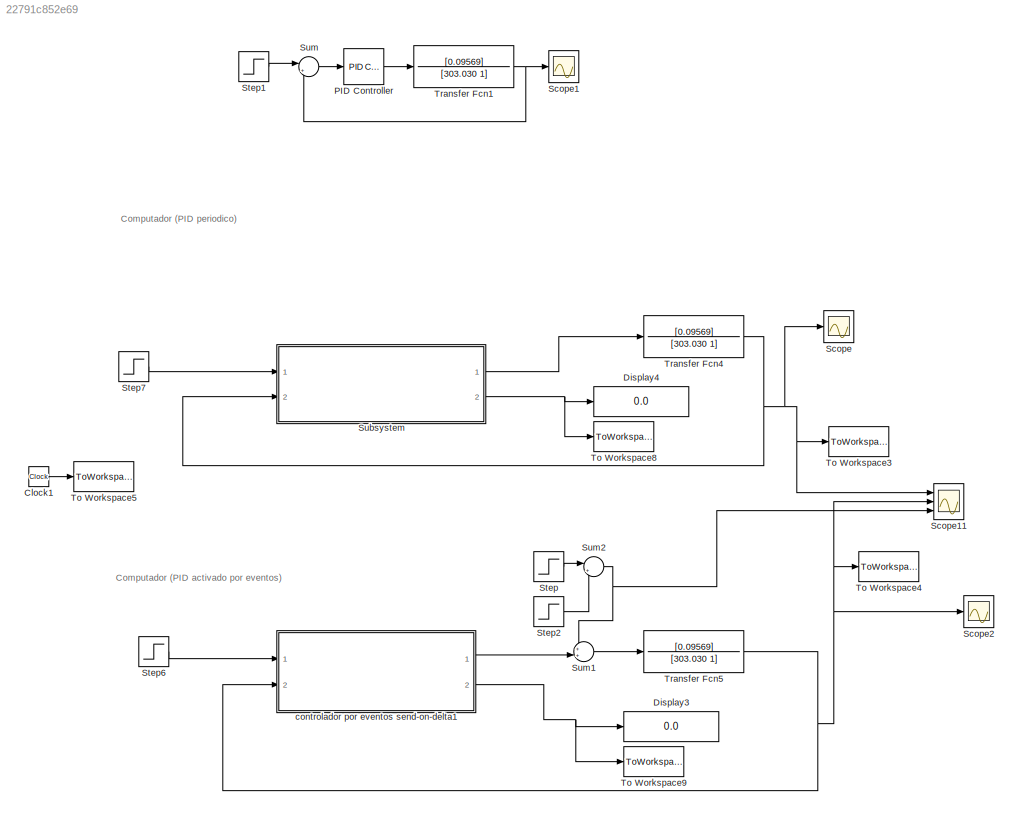
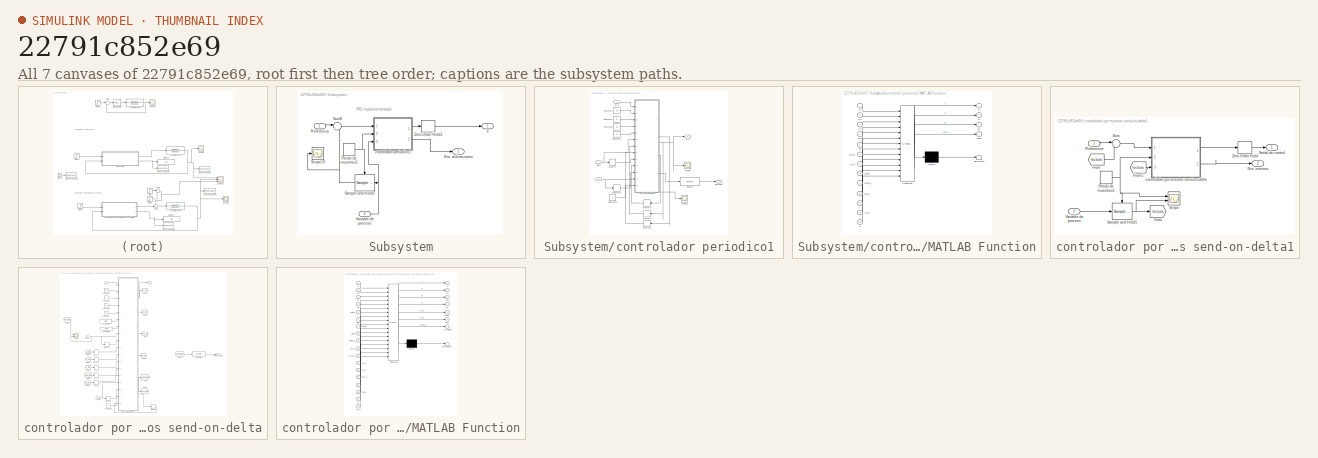
[diagram: thumbnail index - all 7 canvases of the model, root first then tree order]
MODEL slx_22791c852e69
KIND model
CONFIG AbsTol = auto
CONFIG EnableMultiTasking = off
CONFIG FixedStep = 1e-2
CONFIG MaxStep = auto
CONFIG MinStep = auto
CONFIG RelTol = auto
CONFIG SampleTimeConstraint = Unconstrained
CONFIG Solver = FixedStepAuto
CONFIG SolverName = FixedStepAuto
CONFIG StartTime = 0.0
CONFIG StopTime = 8000
BLOCK [Clock] Clock1
BLOCK [Display] Display3
  Decimation = 1
  Ports = [1]
BLOCK [Display] Display4
  Decimation = 1
  Ports = [1]
BLOCK [Reference] PID Controller  REF=simulink/Continuous/PID Controller
  Ports = [1, 1]
  SourceBlock = simulink/Continuous/PID Controller
  SourceProductBaseCode = SL
  SourceProductName = Simulink
  SourceType = PID 1dof
BLOCK [Scope] Scope
  Floating = off
  NumInputPorts = 1
  Ports = [1]
  ScopeSpecificationString = Simulink.scopes.TimeScopeBlockCfg('CurrentConfiguration', extmgr.ConfigurationSet(extmgr.Configuration('Core','General UI',true),extmgr.Configuration('Core','Source UI',true),extmgr.Configuration('Sources','WiredSimulink',true,'DataLoggingVariableName','ScopeData2'),extmgr.Configuration('Visuals','Time Domain',true,'SerializedDisplays',{struct('MinYLimReal','-0.21494','MaxYLimReal','1.93444','YLab...<+1416ch>
BLOCK [Scope] Scope1
  Floating = off
  NumInputPorts = 1
  Ports = [1]
  ScopeSpecificationString = Simulink.scopes.TimeScopeBlockCfg('CurrentConfiguration', extmgr.ConfigurationSet(extmgr.Configuration('Core','General UI',true),extmgr.Configuration('Core','Source UI',true),extmgr.Configuration('Sources','WiredSimulink',true,'DataLoggingVariableName','ScopeData4'),extmgr.Configuration('Visuals','Time Domain',true,'SerializedDisplays',{struct('MinYLimReal','-0.21494','MaxYLimReal','1.93444','YLab...<+1416ch>
BLOCK [Scope] Scope11
  Floating = off
  NumInputPorts = 3
  Ports = [3]
  ScopeSpecificationString = Simulink.scopes.TimeScopeBlockCfg('CurrentConfiguration', extmgr.ConfigurationSet(extmgr.Configuration('Core','General UI',true,'FigureColor',[1 1 1]),extmgr.Configuration('Core','Source UI',true),extmgr.Configuration('Sources','WiredSimulink',true,'DataLoggingVariableName','ScopeData1'),extmgr.Configuration('Visuals','Time Domain',true,'SerializedDisplays',{struct('MinYLimReal','-1.35875','MaxYLi...<+1872ch>
BLOCK [Scope] Scope2
  Floating = off
  NumInputPorts = 1
  Ports = [1]
  ScopeSpecificationString = Simulink.scopes.TimeScopeBlockCfg('CurrentConfiguration', extmgr.ConfigurationSet(extmgr.Configuration('Core','General UI',true),extmgr.Configuration('Core','Source UI',true),extmgr.Configuration('Sources','WiredSimulink',true,'DataLoggingVariableName','ScopeData6'),extmgr.Configuration('Visuals','Time Domain',true,'SerializedDisplays',{struct('MinYLimReal','-0.13397','MaxYLimReal','1.20577','YLab...<+1372ch>
BLOCK [Step] Step
  After = +10
  SampleTime = 0
  Time = 3000
BLOCK [Step] Step1
  SampleTime = 0
  Time = 0
BLOCK [Step] Step2
  After = -10
  SampleTime = 0
  Time = 3050
BLOCK [Step] Step6
  SampleTime = 0
  Time = 0
BLOCK [Step] Step7
  SampleTime = 0
  Time = 0
BLOCK [SubSystem] Subsystem
  Ports = [2, 2]
  RequestExecContextInheritance = off
BLOCK [Outport] Subsystem/Nro. activaciones
  IconDisplay = Port number
  Port = 2
BLOCK [DiscretePulseGenerator] Subsystem/Perido de muestreo2
  Period = Ts
  Ports = [0, 1]
  PulseType = Time based
  PulseWidth = 50
BLOCK [Inport] Subsystem/Referencia
  IconDisplay = Port number
BLOCK [Reference] Subsystem/Sample and Hold2  REF=dspsigops/Sample
and Hold
  Ports = [1, 1, 0, 1]
  SourceBlock = dspsigops/Sample\nand Hold
  SourceProductBaseCode = DS
  SourceProductName = DSP System Toolbox
  SourceType = Sample and Hold
BLOCK [Scope] Subsystem/Scope13
  Floating = off
  NumInputPorts = 1
  Ports = [1]
  ScopeSpecificationString = Simulink.scopes.TimeScopeBlockCfg('CurrentConfiguration', extmgr.ConfigurationSet(extmgr.Configuration('Core','General UI',true),extmgr.Configuration('Core','Source UI',true),extmgr.Configuration('Sources','WiredSimulink',true,'DataLoggingVariableName','ScopeData9'),extmgr.Configuration('Visuals','Time Domain',true,'SerializedDisplays',{struct('MinYLimReal','0.55618','MaxYLimReal','1.07343','YLabe...<+1391ch>
BLOCK [Sum] Subsystem/Sum8
  IconShape = round
  InputSameDT = off
  Inputs = |+-
  OutDataTypeStr = Inherit: Inherit via internal rule
  Ports = [2, 1]
  SaturateOnIntegerOverflow = off
BLOCK [Inport] Subsystem/Variable de proceso
  IconDisplay = Port number
  Port = 2
BLOCK [ZeroOrderHold] Subsystem/Zero-Order Hold3
  SampleTime = -1
BLOCK [SubSystem] Subsystem/controlador periodico1
  Ports = [3, 2]
  RequestExecContextInheritance = off
BLOCK [Inport] Subsystem/controlador periodico1/Clock
  IconDisplay = Port number
  Port = 2
BLOCK [Constant] Subsystem/controlador periodico1/Constant1
  Value = Kp
BLOCK [Constant] Subsystem/controlador periodico1/Constant2
  Value = Ki
BLOCK [Constant] Subsystem/controlador periodico1/Constant3
  Value = Kd
BLOCK [Constant] Subsystem/controlador periodico1/Constant4
  Value = Ts
BLOCK [Constant] Subsystem/controlador periodico1/Constant5
  Value = N
BLOCK [Outport] Subsystem/controlador periodico1/Contador
  IconDisplay = Port number
  Port = 2
BLOCK [Reference] Subsystem/controlador periodico1/Counter  REF=dspswit3/Counter
  Ports = [1, 1]
  SourceBlock = dspswit3/Counter
  SourceProductBaseCode = DS
  SourceProductName = DSP System Toolbox
  SourceType = Counter
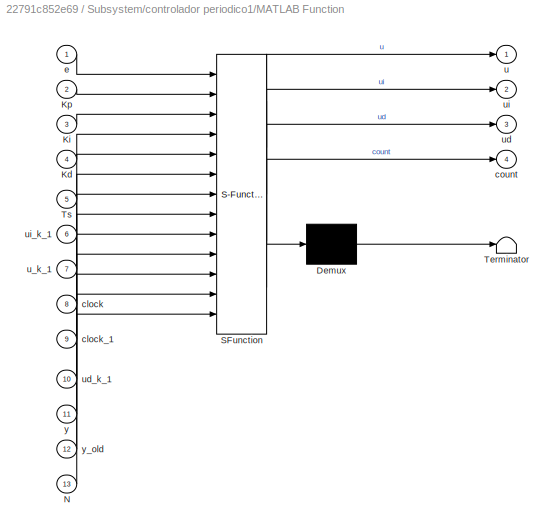
BLOCK [SubSystem] Subsystem/controlador periodico1/MATLAB Function
  ErrorFcn = Stateflow.Translate.translate
  PermitHierarchicalResolution = ExplicitOnly
  Ports = [13, 4]
  RequestExecContextInheritance = off
  SFBlockType = MATLAB Function
  TreatAsAtomicUnit = on
BLOCK [Demux] Subsystem/controlador periodico1/MATLAB Function/ Demux 
  Outputs = 1
  Ports = [1, 1]
BLOCK [S-Function] Subsystem/controlador periodico1/MATLAB Function/ SFunction 
  EnableBusSupport = on
  FunctionName = sf_sfun
  PortCounts = [13 5]
  Ports = [13, 5]
  SFcnIsStateOwnerBlock = off
  SFunctionDeploymentMode = off
  Tag = Stateflow S-Function PID_generico 3
BLOCK [Terminator] Subsystem/controlador periodico1/MATLAB Function/ Terminator 
BLOCK [Inport] Subsystem/controlador periodico1/MATLAB Function/Kd
  IconDisplay = Port number
  Port = 4
BLOCK [Inport] Subsystem/controlador periodico1/MATLAB Function/Ki
  IconDisplay = Port number
  Port = 3
BLOCK [Inport] Subsystem/controlador periodico1/MATLAB Function/Kp
  IconDisplay = Port number
  Port = 2
BLOCK [Inport] Subsystem/controlador periodico1/MATLAB Function/N
  IconDisplay = Port number
  Port = 13
BLOCK [Inport] Subsystem/controlador periodico1/MATLAB Function/Ts
  IconDisplay = Port number
  Port = 5
BLOCK [Inport] Subsystem/controlador periodico1/MATLAB Function/clock
  IconDisplay = Port number
  Port = 8
BLOCK [Inport] Subsystem/controlador periodico1/MATLAB Function/clock_1
  IconDisplay = Port number
  Port = 9
BLOCK [Outport] Subsystem/controlador periodico1/MATLAB Function/count
  IconDisplay = Port number
  Port = 4
BLOCK [Inport] Subsystem/controlador periodico1/MATLAB Function/e
  IconDisplay = Port number
BLOCK [Outport] Subsystem/controlador periodico1/MATLAB Function/u
  IconDisplay = Port number
BLOCK [Inport] Subsystem/controlador periodico1/MATLAB Function/u_k_1
  IconDisplay = Port number
  Port = 7
BLOCK [Outport] Subsystem/controlador periodico1/MATLAB Function/ud
  IconDisplay = Port number
  Port = 3
BLOCK [Inport] Subsystem/controlador periodico1/MATLAB Function/ud_k_1
  IconDisplay = Port number
  Port = 10
BLOCK [Outport] Subsystem/controlador periodico1/MATLAB Function/ui
  IconDisplay = Port number
  Port = 2
BLOCK [Inport] Subsystem/controlador periodico1/MATLAB Function/ui_k_1
  IconDisplay = Port number
  Port = 6
BLOCK [Inport] Subsystem/controlador periodico1/MATLAB Function/y
  IconDisplay = Port number
  Port = 11
BLOCK [Inport] Subsystem/controlador periodico1/MATLAB Function/y_old
  IconDisplay = Port number
  Port = 12
BLOCK [Memory] Subsystem/controlador periodico1/Memory
BLOCK [Memory] Subsystem/controlador periodico1/Memory1
BLOCK [Memory] Subsystem/controlador periodico1/Memory2
BLOCK [Memory] Subsystem/controlador periodico1/Memory3
BLOCK [Memory] Subsystem/controlador periodico1/Memory4
BLOCK [Scope] Subsystem/controlador periodico1/Scope
  Floating = off
  NumInputPorts = 1
  Ports = [1]
  ScopeSpecificationString = Simulink.scopes.TimeScopeBlockCfg('CurrentConfiguration', extmgr.ConfigurationSet(extmgr.Configuration('Core','General UI',true),extmgr.Configuration('Core','Source UI',true),extmgr.Configuration('Sources','WiredSimulink',true,'DataLoggingVariableName','ScopeData1'),extmgr.Configuration('Visuals','Time Domain',true,'SerializedDisplays',{struct('MinYLimReal','1.74532','MaxYLimReal','1.7638','YLabel...<+1389ch>
BLOCK [Scope] Subsystem/controlador periodico1/Scope1
  Floating = off
  NumInputPorts = 1
  Ports = [1]
  ScopeSpecificationString = Simulink.scopes.TimeScopeBlockCfg('CurrentConfiguration', extmgr.ConfigurationSet(extmgr.Configuration('Core','General UI',true),extmgr.Configuration('Core','Source UI',true),extmgr.Configuration('Sources','WiredSimulink',true,'DataLoggingVariableName','ScopeData3'),extmgr.Configuration('Visuals','Time Domain',true,'SerializedDisplays',{struct('MinYLimReal','-1.00000','MaxYLimReal','1.00000','YLab...<+1377ch>
BLOCK [Inport] Subsystem/controlador periodico1/error
  IconDisplay = Port number
BLOCK [Outport] Subsystem/controlador periodico1/u(k)
  IconDisplay = Port number
BLOCK [Inport] Subsystem/controlador periodico1/y
  IconDisplay = Port number
  Port = 3
BLOCK [Outport] Subsystem/e
  IconDisplay = Port number
BLOCK [Sum] Sum
  IconShape = round
  InputSameDT = off
  Inputs = |+-
  OutDataTypeStr = Inherit: Inherit via internal rule
  Ports = [2, 1]
  SaturateOnIntegerOverflow = off
BLOCK [Sum] Sum1
  IconShape = round
  InputSameDT = off
  Inputs = ++|
  OutDataTypeStr = Inherit: Inherit via internal rule
  Ports = [2, 1]
  SaturateOnIntegerOverflow = off
BLOCK [Sum] Sum2
  IconShape = round
  InputSameDT = off
  Inputs = |++
  OutDataTypeStr = Inherit: Inherit via internal rule
  Ports = [2, 1]
  SaturateOnIntegerOverflow = off
BLOCK [ToWorkspace] To Workspace3
  FixptAsFi = on
  MaxDataPoints = inf
  Ports = [1]
  SampleTime = -1
  Save2DSignal = 3-D array (concatenate along third dimension)
  SaveFormat = Structure With Time
  VariableName = y_ts
BLOCK [ToWorkspace] To Workspace4
  FixptAsFi = on
  MaxDataPoints = inf
  Ports = [1]
  SampleTime = -1
  Save2DSignal = 3-D array (concatenate along third dimension)
  SaveFormat = Structure With Time
  VariableName = y_eventos_ts
BLOCK [ToWorkspace] To Workspace5
  FixptAsFi = on
  MaxDataPoints = inf
  Ports = [1]
  SampleTime = -1
  Save2DSignal = 2-D array (concatenate along first dimension)
  VariableName = t_simu1
BLOCK [ToWorkspace] To Workspace8
  FixptAsFi = on
  MaxDataPoints = inf
  Ports = [1]
  SampleTime = -1
  Save2DSignal = 2-D array (concatenate along first dimension)
  VariableName = N_periodico_
BLOCK [ToWorkspace] To Workspace9
  FixptAsFi = on
  MaxDataPoints = inf
  Ports = [1]
  SampleTime = -1
  Save2DSignal = 2-D array (concatenate along first dimension)
  VariableName = N_eventos_
BLOCK [TransferFcn] Transfer Fcn1
  Denominator = [303.030 1]
  Numerator = [0.09569]
BLOCK [TransferFcn] Transfer Fcn4
  Denominator = [303.030 1]
  Numerator = [0.09569]
BLOCK [TransferFcn] Transfer Fcn5
  Denominator = [303.030 1]
  Numerator = [0.09569]
BLOCK [SubSystem] controlador por eventos send-on-delta1
  Ports = [2, 2]
  RequestExecContextInheritance = off
BLOCK [From] controlador por eventos send-on-delta1/From
  GotoTag = lectura
BLOCK [From] controlador por eventos send-on-delta1/From1
  GotoTag = lectura
BLOCK [Goto] controlador por eventos send-on-delta1/Goto
  GotoTag = lectura
BLOCK [Outport] controlador por eventos send-on-delta1/Nro. eventos
  IconDisplay = Port number
  Port = 2
BLOCK [DiscretePulseGenerator] controlador por eventos send-on-delta1/Perido de muestreo1
  Period = Ts
  Ports = [0, 1]
  PulseType = Time based
  PulseWidth = 50
BLOCK [Inport] controlador por eventos send-on-delta1/Referencia
  IconDisplay = Port number
BLOCK [Reference] controlador por eventos send-on-delta1/Sample and Hold1  REF=dspsigops/Sample
and Hold
  Ports = [1, 1, 0, 1]
  SourceBlock = dspsigops/Sample\nand Hold
  SourceProductBaseCode = DS
  SourceProductName = DSP System Toolbox
  SourceType = Sample and Hold
BLOCK [Scope] controlador por eventos send-on-delta1/Scope
  Floating = off
  NumInputPorts = 2
  Ports = [2]
  ScopeSpecificationString = Simulink.scopes.TimeScopeBlockCfg('CurrentConfiguration', extmgr.ConfigurationSet(extmgr.Configuration('Core','General UI',true),extmgr.Configuration('Core','Source UI',true),extmgr.Configuration('Sources','WiredSimulink',true,'DataLoggingVariableName','ScopeData7'),extmgr.Configuration('Visuals','Time Domain',true,'SerializedDisplays',{struct('MinYLimReal','-0.08236','MaxYLimReal','1.02074','YLab...<+1417ch>
BLOCK [Outport] controlador por eventos send-on-delta1/Señal de control
  IconDisplay = Port number
BLOCK [Sum] controlador por eventos send-on-delta1/Sum
  IconShape = round
  InputSameDT = off
  Inputs = |+-
  OutDataTypeStr = Inherit: Inherit via internal rule
  Ports = [2, 1]
  SaturateOnIntegerOverflow = off
BLOCK [Inport] controlador por eventos send-on-delta1/Variable de proceso
  IconDisplay = Port number
  Port = 2
BLOCK [ZeroOrderHold] controlador por eventos send-on-delta1/Zero-Order Hold
  SampleTime = -1
BLOCK [SubSystem] controlador por eventos send-on-delta1/controlador por eventos send-on-delta
  Ports = [3, 2]
  RequestExecContextInheritance = off
BLOCK [Constant] controlador por eventos send-on-delta1/controlador por eventos send-on-delta/Constant
  Value = Ts
BLOCK [Constant] controlador por eventos send-on-delta1/controlador por eventos send-on-delta/Constant1
  Value = Kp
BLOCK [Constant] controlador por eventos send-on-delta1/controlador por eventos send-on-delta/Constant2
  Value = Ki
BLOCK [Constant] controlador por eventos send-on-delta1/controlador por eventos send-on-delta/Constant3
  Value = Kd
BLOCK [Constant] controlador por eventos send-on-delta1/controlador por eventos send-on-delta/Constant4
  Value = elim
BLOCK [Constant] controlador por eventos send-on-delta1/controlador por eventos send-on-delta/Constant5
  Value = hmax
BLOCK [Constant] controlador por eventos send-on-delta1/controlador por eventos send-on-delta/Constant6
  Value = N
BLOCK [Reference] controlador por eventos send-on-delta1/controlador por eventos send-on-delta/Counter  REF=dspswit3/Counter
  Ports = [1, 1]
  SourceBlock = dspswit3/Counter
  SourceProductBaseCode = DS
  SourceProductName = DSP System Toolbox
  SourceType = Counter
BLOCK [From] controlador por eventos send-on-delta1/controlador por eventos send-on-delta/From
  GotoTag = Count_tag
BLOCK [From] controlador por eventos send-on-delta1/controlador por eventos send-on-delta/From1
  GotoTag = es_tag
BLOCK [From] controlador por eventos send-on-delta1/controlador por eventos send-on-delta/From2
  GotoTag = u_tag
BLOCK [From] controlador por eventos send-on-delta1/controlador por eventos send-on-delta/From3
  GotoTag = hact_tag
BLOCK [From] controlador por eventos send-on-delta1/controlador por eventos send-on-delta/From4
  GotoTag = ui_tag
BLOCK [From] controlador por eventos send-on-delta1/controlador por eventos send-on-delta/From5
  GotoTag = hact_tag
BLOCK [From] controlador por eventos send-on-delta1/controlador por eventos send-on-delta/From6
  GotoTag = ud_tag
BLOCK [Goto] controlador por eventos send-on-delta1/controlador por eventos send-on-delta/Goto
  GotoTag = Count_tag
BLOCK [Goto] controlador por eventos send-on-delta1/controlador por eventos send-on-delta/Goto1
  GotoTag = es_tag
BLOCK [Goto] controlador por eventos send-on-delta1/controlador por eventos send-on-delta/Goto2
  GotoTag = u_tag
BLOCK [Goto] controlador por eventos send-on-delta1/controlador por eventos send-on-delta/Goto3
  GotoTag = ui_tag
BLOCK [Goto] controlador por eventos send-on-delta1/controlador por eventos send-on-delta/Goto4
  GotoTag = hact_tag
BLOCK [Goto] controlador por eventos send-on-delta1/controlador por eventos send-on-delta/Goto5
  GotoTag = ud_tag
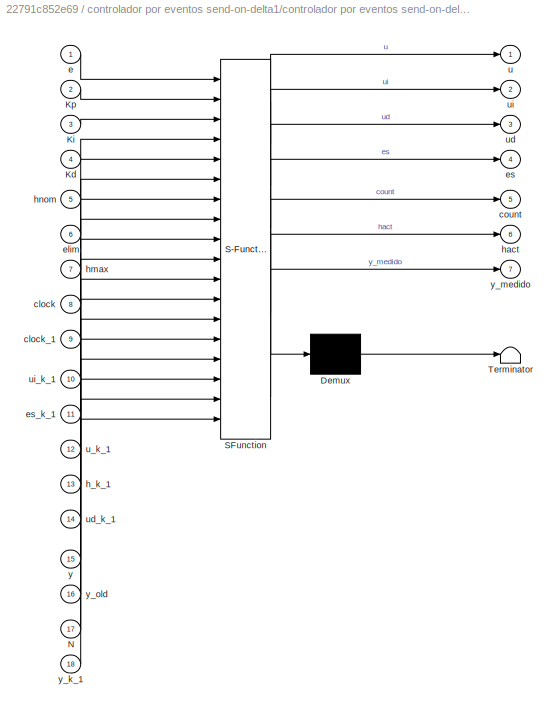
BLOCK [SubSystem] controlador por eventos send-on-delta1/controlador por eventos send-on-delta/MATLAB Function
  ErrorFcn = Stateflow.Translate.translate
  PermitHierarchicalResolution = ExplicitOnly
  Ports = [18, 7]
  RequestExecContextInheritance = off
  SFBlockType = MATLAB Function
  TreatAsAtomicUnit = on
BLOCK [Demux] controlador por eventos send-on-delta1/controlador por eventos send-on-delta/MATLAB Function/ Demux 
  Outputs = 1
  Ports = [1, 1]
BLOCK [S-Function] controlador por eventos send-on-delta1/controlador por eventos send-on-delta/MATLAB Function/ SFunction 
  EnableBusSupport = on
  FunctionName = sf_sfun
  PortCounts = [18 8]
  Ports = [18, 8]
  SFcnIsStateOwnerBlock = off
  SFunctionDeploymentMode = off
  Tag = Stateflow S-Function PID_generico 5
BLOCK [Terminator] controlador por eventos send-on-delta1/controlador por eventos send-on-delta/MATLAB Function/ Terminator 
BLOCK [Inport] controlador por eventos send-on-delta1/controlador por eventos send-on-delta/MATLAB Function/Kd
  IconDisplay = Port number
  Port = 4
BLOCK [Inport] controlador por eventos send-on-delta1/controlador por eventos send-on-delta/MATLAB Function/Ki
  IconDisplay = Port number
  Port = 3
BLOCK [Inport] controlador por eventos send-on-delta1/controlador por eventos send-on-delta/MATLAB Function/Kp
  IconDisplay = Port number
  Port = 2
BLOCK [Inport] controlador por eventos send-on-delta1/controlador por eventos send-on-delta/MATLAB Function/N
  IconDisplay = Port number
  Port = 17
BLOCK [Inport] controlador por eventos send-on-delta1/controlador por eventos send-on-delta/MATLAB Function/clock
  IconDisplay = Port number
  Port = 8
BLOCK [Inport] controlador por eventos send-on-delta1/controlador por eventos send-on-delta/MATLAB Function/clock_1
  IconDisplay = Port number
  Port = 9
BLOCK [Outport] controlador por eventos send-on-delta1/controlador por eventos send-on-delta/MATLAB Function/count
  IconDisplay = Port number
  Port = 5
BLOCK [Inport] controlador por eventos send-on-delta1/controlador por eventos send-on-delta/MATLAB Function/e
  IconDisplay = Port number
BLOCK [Inport] controlador por eventos send-on-delta1/controlador por eventos send-on-delta/MATLAB Function/elim
  IconDisplay = Port number
  Port = 6
BLOCK [Outport] controlador por eventos send-on-delta1/controlador por eventos send-on-delta/MATLAB Function/es
  IconDisplay = Port number
  Port = 4
BLOCK [Inport] controlador por eventos send-on-delta1/controlador por eventos send-on-delta/MATLAB Function/es_k_1
  IconDisplay = Port number
  Port = 11
BLOCK [Inport] controlador por eventos send-on-delta1/controlador por eventos send-on-delta/MATLAB Function/h_k_1
  IconDisplay = Port number
  Port = 13
BLOCK [Outport] controlador por eventos send-on-delta1/controlador por eventos send-on-delta/MATLAB Function/hact
  IconDisplay = Port number
  Port = 6
BLOCK [Inport] controlador por eventos send-on-delta1/controlador por eventos send-on-delta/MATLAB Function/hmax
  IconDisplay = Port number
  Port = 7
BLOCK [Inport] controlador por eventos send-on-delta1/controlador por eventos send-on-delta/MATLAB Function/hnom
  IconDisplay = Port number
  Port = 5
BLOCK [Outport] controlador por eventos send-on-delta1/controlador por eventos send-on-delta/MATLAB Function/u
  IconDisplay = Port number
BLOCK [Inport] controlador por eventos send-on-delta1/controlador por eventos send-on-delta/MATLAB Function/u_k_1
  IconDisplay = Port number
  Port = 12
BLOCK [Outport] controlador por eventos send-on-delta1/controlador por eventos send-on-delta/MATLAB Function/ud
  IconDisplay = Port number
  Port = 3
BLOCK [Inport] controlador por eventos send-on-delta1/controlador por eventos send-on-delta/MATLAB Function/ud_k_1
  IconDisplay = Port number
  Port = 14
BLOCK [Outport] controlador por eventos send-on-delta1/controlador por eventos send-on-delta/MATLAB Function/ui
  IconDisplay = Port number
  Port = 2
BLOCK [Inport] controlador por eventos send-on-delta1/controlador por eventos send-on-delta/MATLAB Function/ui_k_1
  IconDisplay = Port number
  Port = 10
BLOCK [Inport] controlador por eventos send-on-delta1/controlador por eventos send-on-delta/MATLAB Function/y
  IconDisplay = Port number
  Port = 15
BLOCK [Inport] controlador por eventos send-on-delta1/controlador por eventos send-on-delta/MATLAB Function/y_k_1
  IconDisplay = Port number
  Port = 18
BLOCK [Outport] controlador por eventos send-on-delta1/controlador por eventos send-on-delta/MATLAB Function/y_medido
  IconDisplay = Port number
  Port = 7
BLOCK [Inport] controlador por eventos send-on-delta1/controlador por eventos send-on-delta/MATLAB Function/y_old
  IconDisplay = Port number
  Port = 16
BLOCK [Memory] controlador por eventos send-on-delta1/controlador por eventos send-on-delta/Memory
BLOCK [Memory] controlador por eventos send-on-delta1/controlador por eventos send-on-delta/Memory4
BLOCK [Memory] controlador por eventos send-on-delta1/controlador por eventos send-on-delta/Memory6
BLOCK [Outport] controlador por eventos send-on-delta1/controlador por eventos send-on-delta/Nro de eventos 
  IconDisplay = Port number
  Port = 2
BLOCK [Scope] controlador por eventos send-on-delta1/controlador por eventos send-on-delta/Scope
  Floating = off
  NumInputPorts = 2
  Ports = [2]
  ScopeSpecificationString = Simulink.scopes.TimeScopeBlockCfg('CurrentConfiguration', extmgr.ConfigurationSet(extmgr.Configuration('Core','General UI',true),extmgr.Configuration('Core','Source UI',true),extmgr.Configuration('Sources','WiredSimulink',true,'DataLoggingVariableName','ScopeData5'),extmgr.Configuration('Visuals','Time Domain',true,'SerializedDisplays',{struct('MinYLimReal','-33.71232','MaxYLimReal','79.84498','YL...<+1423ch>
BLOCK [Inport] controlador por eventos send-on-delta1/controlador por eventos send-on-delta/clock
  IconDisplay = Port number
  Port = 2
BLOCK [Inport] controlador por eventos send-on-delta1/controlador por eventos send-on-delta/e
  IconDisplay = Port number
BLOCK [Memory] controlador por eventos send-on-delta1/controlador por eventos send-on-delta/es_k_1
BLOCK [Memory] controlador por eventos send-on-delta1/controlador por eventos send-on-delta/h_k_1
BLOCK [Outport] controlador por eventos send-on-delta1/controlador por eventos send-on-delta/u
  IconDisplay = Port number
BLOCK [Memory] controlador por eventos send-on-delta1/controlador por eventos send-on-delta/u_k_1
BLOCK [Memory] controlador por eventos send-on-delta1/controlador por eventos send-on-delta/ud_k_1
BLOCK [Memory] controlador por eventos send-on-delta1/controlador por eventos send-on-delta/ui_k_1
BLOCK [Inport] controlador por eventos send-on-delta1/controlador por eventos send-on-delta/y_planta
  IconDisplay = Port number
  Port = 3
ANNOTATION (root): Computador (PID activado por eventos)
ANNOTATION (root): Computador (PID periodico)
ANNOTATION Subsystem: PID implemementado
LINE Clock1:1 -> To Workspace5:1
LINE PID Controller:1 -> Transfer Fcn1:1
LINE Step1:1 -> Sum:1
LINE Step2:1 -> Sum2:2
LINE Step6:1 -> controlador por eventos send-on-delta1:1
LINE Step7:1 -> Subsystem:1
LINE Step:1 -> Sum2:1
NET Subsystem/Perido de muestreo2:1 -> Subsystem/Sample and Hold2:trigger, Subsystem/controlador periodico1:2
LINE Subsystem/Referencia:1 -> Subsystem/Sum8:1
NET Subsystem/Sample and Hold2:1 -> Subsystem/Scope13:1, Subsystem/Sum8:2
LINE Subsystem/Sum8:1 -> Subsystem/controlador periodico1:1
NET Subsystem/Variable de proceso:1 -> Subsystem/Sample and Hold2:1, Subsystem/controlador periodico1:3
LINE Subsystem/Zero-Order Hold3:1 -> Subsystem/e:1
NET Subsystem/controlador periodico1/Clock:1 -> Subsystem/controlador periodico1/MATLAB Function:8, Subsystem/controlador periodico1/Memory:1
LINE Subsystem/controlador periodico1/Constant1:1 -> Subsystem/controlador periodico1/MATLAB Function:2
LINE Subsystem/controlador periodico1/Constant2:1 -> Subsystem/controlador periodico1/MATLAB Function:3
LINE Subsystem/controlador periodico1/Constant3:1 -> Subsystem/controlador periodico1/MATLAB Function:4
LINE Subsystem/controlador periodico1/Constant4:1 -> Subsystem/controlador periodico1/MATLAB Function:5
LINE Subsystem/controlador periodico1/Constant5:1 -> Subsystem/controlador periodico1/MATLAB Function:13
LINE Subsystem/controlador periodico1/Counter:1 -> Subsystem/controlador periodico1/Contador:1
NET Subsystem/controlador periodico1/MATLAB Function:1 -> Subsystem/controlador periodico1/Memory1:1, Subsystem/controlador periodico1/Scope:1, Subsystem/controlador periodico1/u(k):1
LINE Subsystem/controlador periodico1/MATLAB Function:2 -> Subsystem/controlador periodico1/Memory2:1
NET Subsystem/controlador periodico1/MATLAB Function:3 -> Subsystem/controlador periodico1/Memory3:1, Subsystem/controlador periodico1/Scope1:1
LINE Subsystem/controlador periodico1/MATLAB Function:4 -> Subsystem/controlador periodico1/Counter:1
LINE Subsystem/controlador periodico1/Memory1:1 -> Subsystem/controlador periodico1/MATLAB Function:7
LINE Subsystem/controlador periodico1/Memory2:1 -> Subsystem/controlador periodico1/MATLAB Function:6
LINE Subsystem/controlador periodico1/Memory3:1 -> Subsystem/controlador periodico1/MATLAB Function:10
LINE Subsystem/controlador periodico1/Memory4:1 -> Subsystem/controlador periodico1/MATLAB Function:12
LINE Subsystem/controlador periodico1/Memory:1 -> Subsystem/controlador periodico1/MATLAB Function:9
LINE Subsystem/controlador periodico1/error:1 -> Subsystem/controlador periodico1/MATLAB Function:1
NET Subsystem/controlador periodico1/y:1 -> Subsystem/controlador periodico1/MATLAB Function:11, Subsystem/controlador periodico1/Memory4:1
LINE Subsystem/controlador periodico1:1 -> Subsystem/Zero-Order Hold3:1
LINE Subsystem/controlador periodico1:2 -> Subsystem/Nro. activaciones:1
LINE Subsystem:1 -> Transfer Fcn4:1
NET Subsystem:2 -> Display4:1, To Workspace8:1
LINE Sum1:1 -> Transfer Fcn5:1
NET Sum2:1 -> Scope11:3, Sum1:1
LINE Sum:1 -> PID Controller:1
NET Transfer Fcn1:1 -> Scope1:1, Sum:2
NET Transfer Fcn4:1 -> Scope11:1, Scope:1, Subsystem:2, To Workspace3:1
NET Transfer Fcn5:1 -> Scope11:2, Scope2:1, To Workspace4:1, controlador por eventos send-on-delta1:2
LINE controlador por eventos send-on-delta1/From1:1 -> controlador por eventos send-on-delta1/controlador por eventos send-on-delta:3
LINE controlador por eventos send-on-delta1/From:1 -> controlador por eventos send-on-delta1/Sum:2
NET controlador por eventos send-on-delta1/Perido de muestreo1:1 -> controlador por eventos send-on-delta1/Sample and Hold1:trigger, controlador por eventos send-on-delta1/Scope:1, controlador por eventos send-on-delta1/controlador por eventos send-on-delta:2
LINE controlador por eventos send-on-delta1/Referencia:1 -> controlador por eventos send-on-delta1/Sum:1
NET controlador por eventos send-on-delta1/Sample and Hold1:1 -> controlador por eventos send-on-delta1/Goto:1, controlador por eventos send-on-delta1/Scope:2
LINE controlador por eventos send-on-delta1/Sum:1 -> controlador por eventos send-on-delta1/controlador por eventos send-on-delta:1
LINE controlador por eventos send-on-delta1/Variable de proceso:1 -> controlador por eventos send-on-delta1/Sample and Hold1:1
LINE controlador por eventos send-on-delta1/Zero-Order Hold:1 -> controlador por eventos send-on-delta1/Señal de control:1
LINE controlador por eventos send-on-delta1/controlador por eventos send-on-delta/Constant1:1 -> controlador por eventos send-on-delta1/controlador por eventos send-on-delta/MATLAB Function:2
LINE controlador por eventos send-on-delta1/controlador por eventos send-on-delta/Constant2:1 -> controlador por eventos send-on-delta1/controlador por eventos send-on-delta/MATLAB Function:3
LINE controlador por eventos send-on-delta1/controlador por eventos send-on-delta/Constant3:1 -> controlador por eventos send-on-delta1/controlador por eventos send-on-delta/MATLAB Function:4
LINE controlador por eventos send-on-delta1/controlador por eventos send-on-delta/Constant4:1 -> controlador por eventos send-on-delta1/controlador por eventos send-on-delta/MATLAB Function:6
LINE controlador por eventos send-on-delta1/controlador por eventos send-on-delta/Constant5:1 -> controlador por eventos send-on-delta1/controlador por eventos send-on-delta/MATLAB Function:7
LINE controlador por eventos send-on-delta1/controlador por eventos send-on-delta/Constant6:1 -> controlador por eventos send-on-delta1/controlador por eventos send-on-delta/MATLAB Function:17
LINE controlador por eventos send-on-delta1/controlador por eventos send-on-delta/Constant:1 -> controlador por eventos send-on-delta1/controlador por eventos send-on-delta/MATLAB Function:5
LINE controlador por eventos send-on-delta1/controlador por eventos send-on-delta/Counter:1 -> controlador por eventos send-on-delta1/controlador por eventos send-on-delta/Nro de eventos :1
LINE controlador por eventos send-on-delta1/controlador por eventos send-on-delta/From1:1 -> controlador por eventos send-on-delta1/controlador por eventos send-on-delta/es_k_1:1
LINE controlador por eventos send-on-delta1/controlador por eventos send-on-delta/From2:1 -> controlador por eventos send-on-delta1/controlador por eventos send-on-delta/u_k_1:1
LINE controlador por eventos send-on-delta1/controlador por eventos send-on-delta/From3:1 -> controlador por eventos send-on-delta1/controlador por eventos send-on-delta/Scope:1
LINE controlador por eventos send-on-delta1/controlador por eventos send-on-delta/From4:1 -> controlador por eventos send-on-delta1/controlador por eventos send-on-delta/ui_k_1:1
LINE controlador por eventos send-on-delta1/controlador por eventos send-on-delta/From5:1 -> controlador por eventos send-on-delta1/controlador por eventos send-on-delta/h_k_1:1
LINE controlador por eventos send-on-delta1/controlador por eventos send-on-delta/From6:1 -> controlador por eventos send-on-delta1/controlador por eventos send-on-delta/ud_k_1:1
LINE controlador por eventos send-on-delta1/controlador por eventos send-on-delta/From:1 -> controlador por eventos send-on-delta1/controlador por eventos send-on-delta/Counter:1
NET controlador por eventos send-on-delta1/controlador por eventos send-on-delta/MATLAB Function:1 -> controlador por eventos send-on-delta1/controlador por eventos send-on-delta/Goto2:1, controlador por eventos send-on-delta1/controlador por eventos send-on-delta/u:1
LINE controlador por eventos send-on-delta1/controlador por eventos send-on-delta/MATLAB Function:2 -> controlador por eventos send-on-delta1/controlador por eventos send-on-delta/Goto3:1
LINE controlador por eventos send-on-delta1/controlador por eventos send-on-delta/MATLAB Function:3 -> controlador por eventos send-on-delta1/controlador por eventos send-on-delta/Goto5:1
LINE controlador por eventos send-on-delta1/controlador por eventos send-on-delta/MATLAB Function:4 -> controlador por eventos send-on-delta1/controlador por eventos send-on-delta/Goto1:1
LINE controlador por eventos send-on-delta1/controlador por eventos send-on-delta/MATLAB Function:5 -> controlador por eventos send-on-delta1/controlador por eventos send-on-delta/Goto:1
LINE controlador por eventos send-on-delta1/controlador por eventos send-on-delta/MATLAB Function:6 -> controlador por eventos send-on-delta1/controlador por eventos send-on-delta/Goto4:1
LINE controlador por eventos send-on-delta1/controlador por eventos send-on-delta/MATLAB Function:7 -> controlador por eventos send-on-delta1/controlador por eventos send-on-delta/Memory:1
LINE controlador por eventos send-on-delta1/controlador por eventos send-on-delta/Memory4:1 -> controlador por eventos send-on-delta1/controlador por eventos send-on-delta/MATLAB Function:9
LINE controlador por eventos send-on-delta1/controlador por eventos send-on-delta/Memory6:1 -> controlador por eventos send-on-delta1/controlador por eventos send-on-delta/MATLAB Function:16
LINE controlador por eventos send-on-delta1/controlador por eventos send-on-delta/Memory:1 -> controlador por eventos send-on-delta1/controlador por eventos send-on-delta/MATLAB Function:18
NET controlador por eventos send-on-delta1/controlador por eventos send-on-delta/clock:1 -> controlador por eventos send-on-delta1/controlador por eventos send-on-delta/MATLAB Function:8, controlador por eventos send-on-delta1/controlador por eventos send-on-delta/Memory4:1, controlador por eventos send-on-delta1/controlador por eventos send-on-delta/Scope:2
LINE controlador por eventos send-on-delta1/controlador por eventos send-on-delta/e:1 -> controlador por eventos send-on-delta1/controlador por eventos send-on-delta/MATLAB Function:1
LINE controlador por eventos send-on-delta1/controlador por eventos send-on-delta/es_k_1:1 -> controlador por eventos send-on-delta1/controlador por eventos send-on-delta/MATLAB Function:11
LINE controlador por eventos send-on-delta1/controlador por eventos send-on-delta/h_k_1:1 -> controlador por eventos send-on-delta1/controlador por eventos send-on-delta/MATLAB Function:13
LINE controlador por eventos send-on-delta1/controlador por eventos send-on-delta/u_k_1:1 -> controlador por eventos send-on-delta1/controlador por eventos send-on-delta/MATLAB Function:12
LINE controlador por eventos send-on-delta1/controlador por eventos send-on-delta/ud_k_1:1 -> controlador por eventos send-on-delta1/controlador por eventos send-on-delta/MATLAB Function:14
LINE controlador por eventos send-on-delta1/controlador por eventos send-on-delta/ui_k_1:1 -> controlador por eventos send-on-delta1/controlador por eventos send-on-delta/MATLAB Function:10
NET controlador por eventos send-on-delta1/controlador por eventos send-on-delta/y_planta:1 -> controlador por eventos send-on-delta1/controlador por eventos send-on-delta/MATLAB Function:15, controlador por eventos send-on-delta1/controlador por eventos send-on-delta/Memory6:1
LINE controlador por eventos send-on-delta1/controlador por eventos send-on-delta:1 -> controlador por eventos send-on-delta1/Zero-Order Hold:1
LINE controlador por eventos send-on-delta1/controlador por eventos send-on-delta:2 -> controlador por eventos send-on-delta1/Nro. eventos:1
LINE controlador por eventos send-on-delta1:1 -> Sum1:2
NET controlador por eventos send-on-delta1:2 -> Display3:1, To Workspace9:1
note: NET lines group one-source signal fan-out (src -> all destinations, sorted); 1:1 wires keep LINE
CHART Subsystem/controlador periodico1/MATLAB Function states=1 transitions=1
  STATE_LABEL 'eML_blk_kernel()'
  STATE_LABEL 'SCRIPT:\nfunction [u,ui,ud,count]  = fcn(e,Kp,Ki,Kd,Ts,ui_k_1,u_k_1,clock,clock_1,ud_k_1,y,y_old,N)\nif(clock==1 && clock_1==0)\n    %Ejecución del algoritmo de PID\n    up=Kp*(e);              %Acción proporcional\n    ud=(Kd/(Kd+N*Kp*Ts))*(ud_k_1-Kp*N*(y-y_old));\n    u=up + ui_k_1 + ud;          %Generación de señal de control\n    \n    %Calculo de acción integral en tk+1\n    ui=ui_k_1 + (Ki*Ts)*(e);\n...<+145ch>'
CHART controlador por eventos send-on-delta1/controlador por eventos send-on-delta/MATLAB Function states=1 transitions=1
  STATE_LABEL 'eML_blk_kernel()'
  STATE_LABEL 'SCRIPT:\nfunction [u,ui,ud,es,count,hact,y_medido]  = fcn(e,Kp,Ki,Kd,hnom,elim,hmax,clock,clock_1,ui_k_1,es_k_1,u_k_1,h_k_1,ud_k_1,y,y_old,N,y_k_1)\nif(clock==1 && clock_1==0)\n    hact=h_k_1 + hnom;      %Cálculo del periodo de muestreo actual\n    \n    if(abs(e-es_k_1)>elim || hact>=hmax)    %Condición de umbrales de activación\n       es=e;        %Actualización del valor de error de es             ...<+633ch>'
